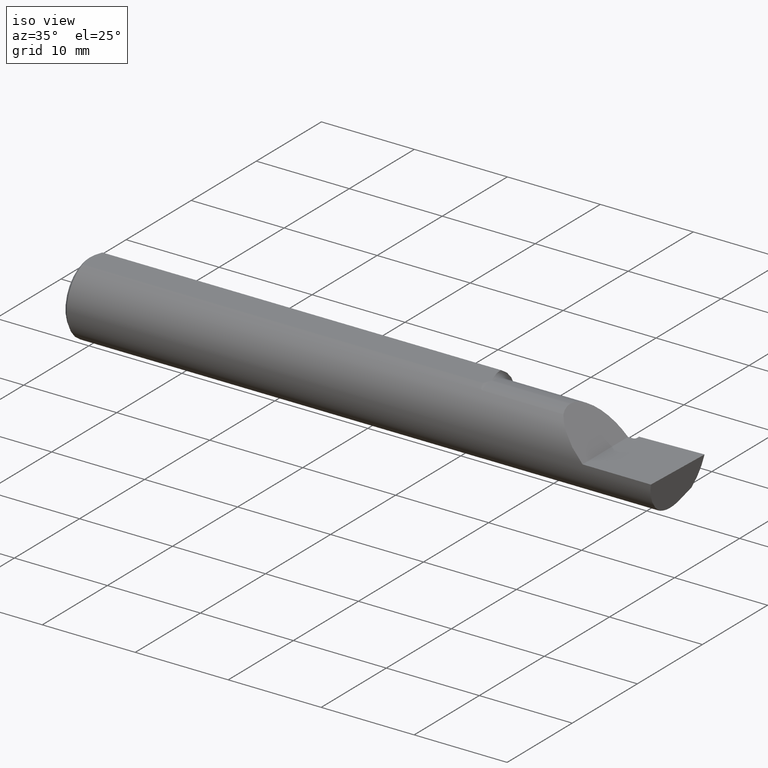
[diagram: clean part render]
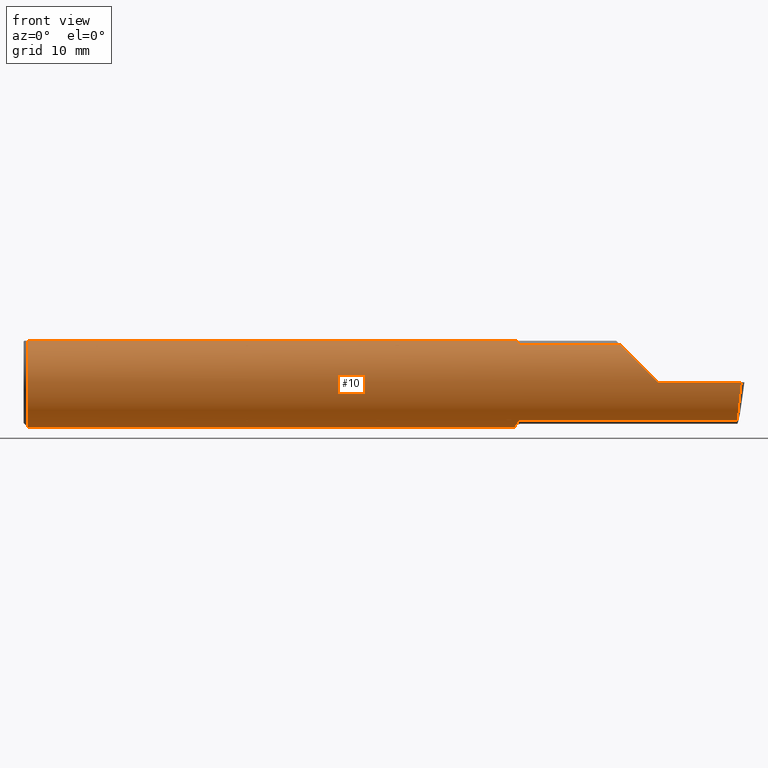
[diagram: tour spotlight — one face highlighted and labeled with its STEP entity id]
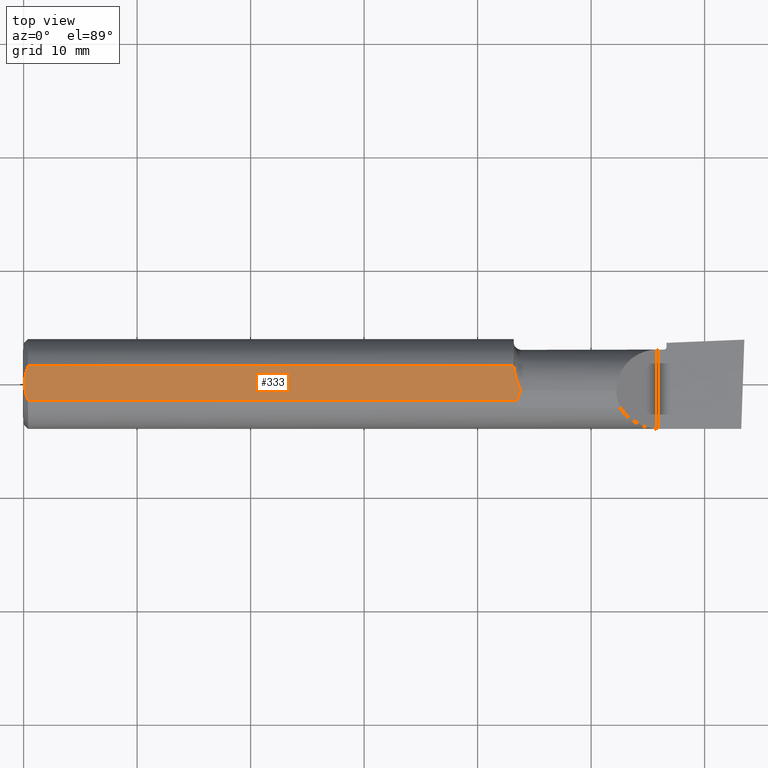
[diagram: tour spotlight — one face highlighted and labeled with its STEP entity id]
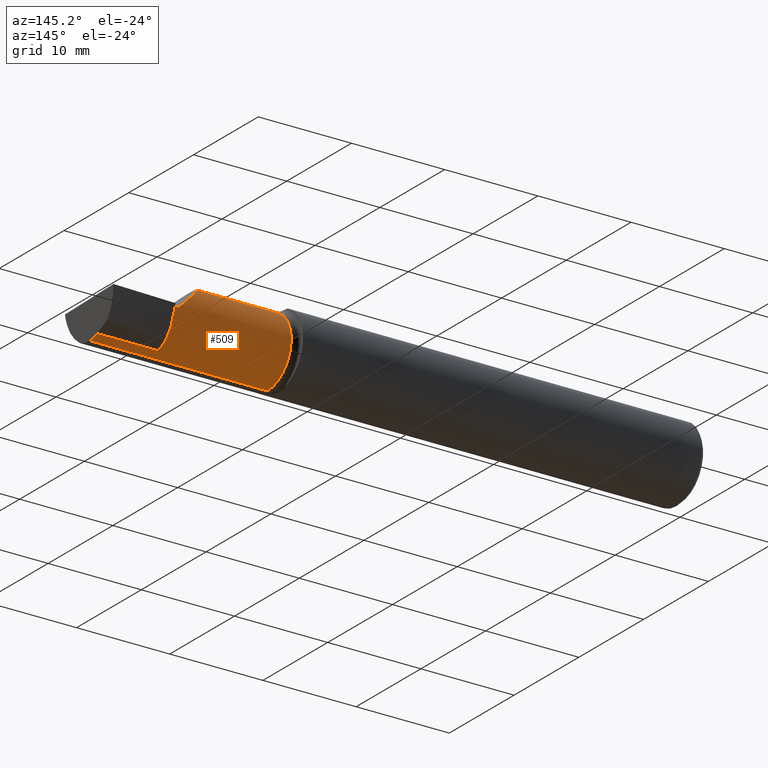
[diagram: tour spotlight — one face highlighted and labeled with its STEP entity id]
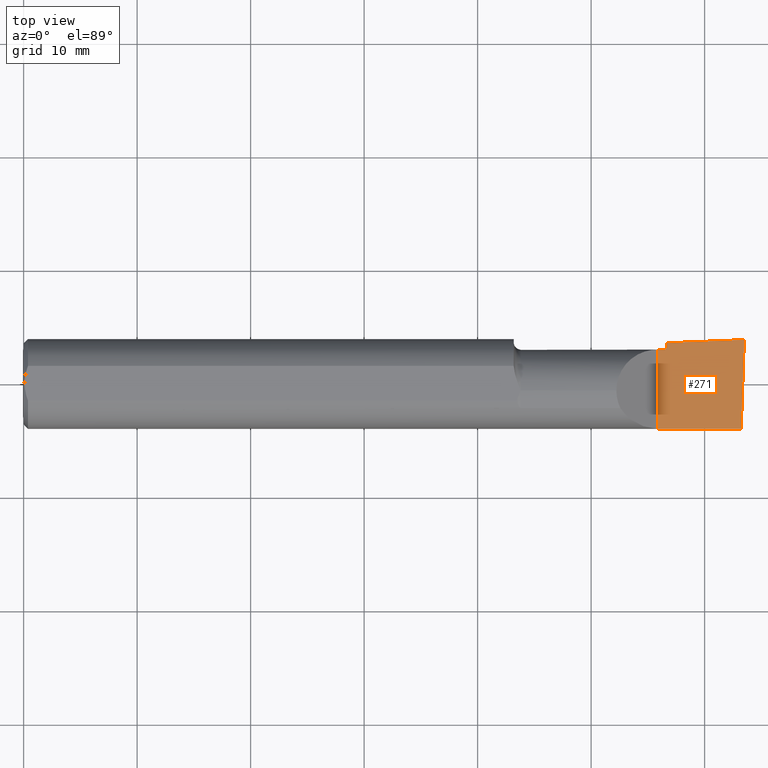
[diagram: tour spotlight — one face highlighted and labeled with its STEP entity id]
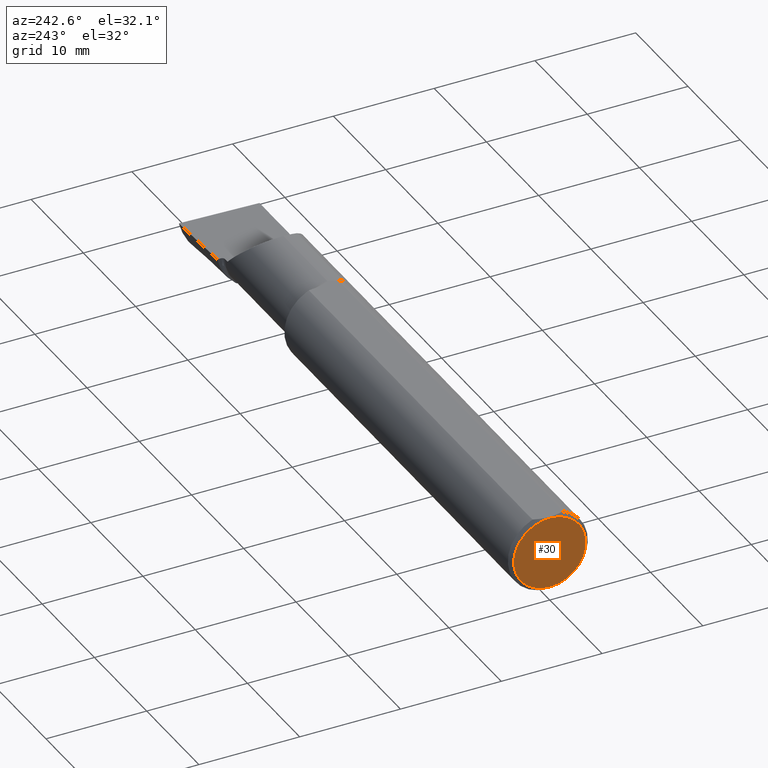
[diagram: tour spotlight — one face highlighted and labeled with its STEP entity id]
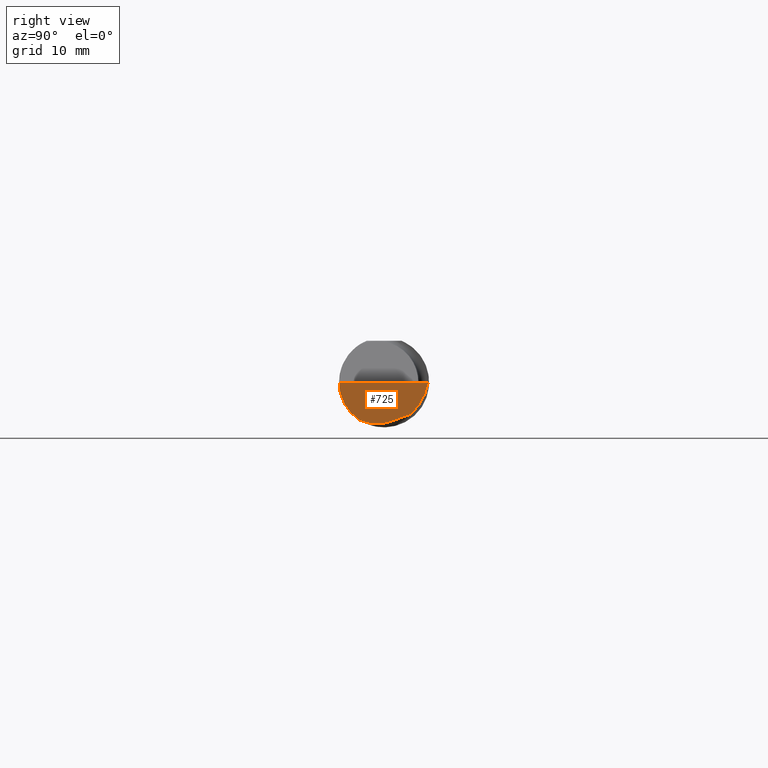
[diagram: tour spotlight — one face highlighted and labeled with its STEP entity id]
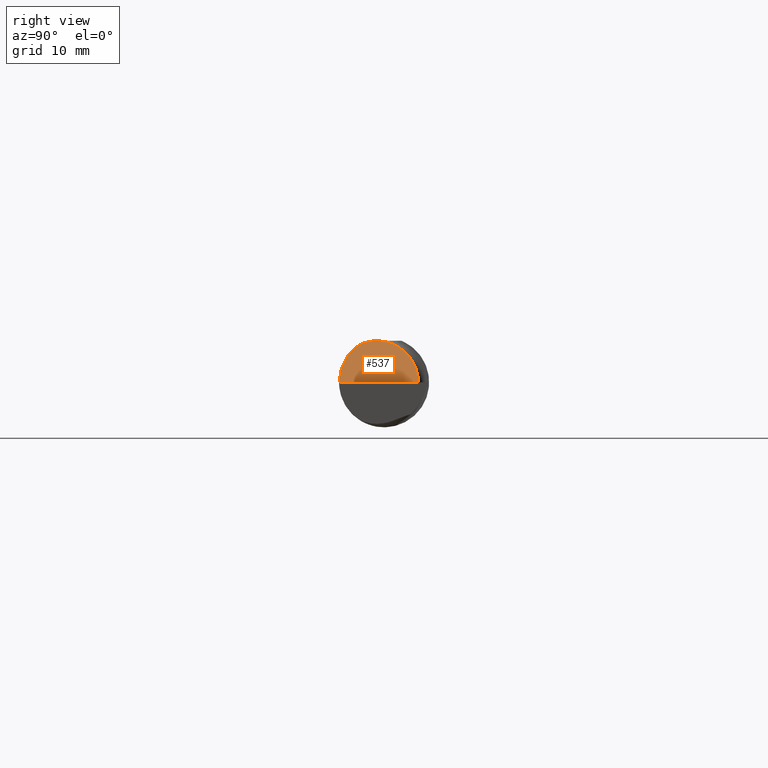
[diagram: tour spotlight — one face highlighted and labeled with its STEP entity id]
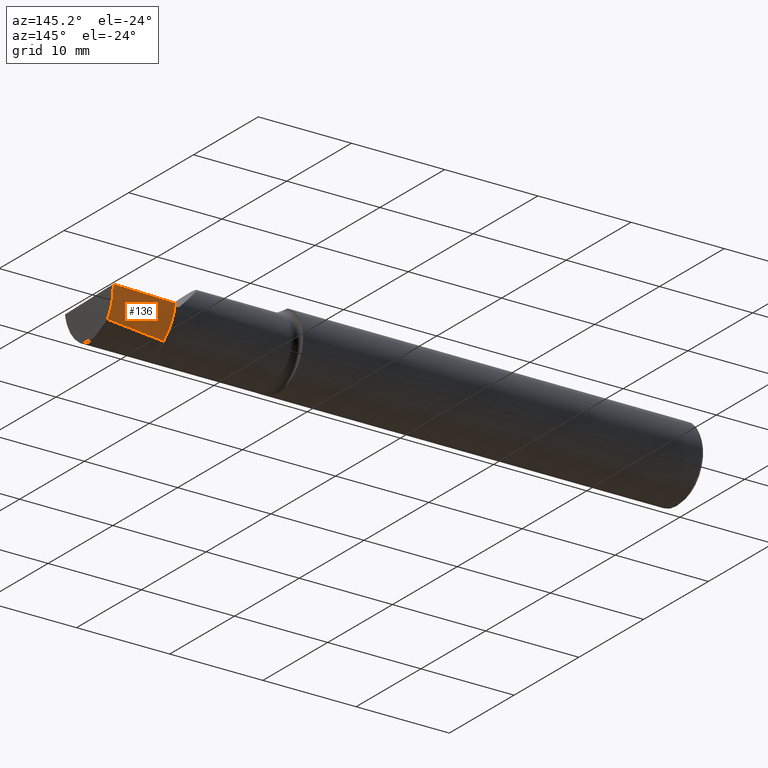
[diagram: tour spotlight — one face highlighted and labeled with its STEP entity id]
A machine part: a face-by-face anatomy tour. The part has 19 B-rep faces; the first image is the clean iso view, then the 8 largest visible faces are spotlighted one at a time (largest first), each with its STEP entity span.

Face 1 — front view, entity #10. In plain terms, the highlighted cylindrical surface (partial cylindrical patch) has radius 3.9649 mm, axis along (-1, -0, -0).
Definition (entity closure, byte-faithful):
#1 = ORIENTED_EDGE ( 'NONE', *, *, #163, .F. ) ;
#2 = CARTESIAN_POINT ( 'NONE',  ( 2.482667168175673122, -0.1560999999999999333, -0.05371247775559884891 ) ) ;
#4 = B_SPLINE_CURVE_WITH_KNOTS ( 'NONE', 3,
 ( #316, #206, #541, #604, #43, #710, #39, #428, #653, #369 ),
 .UNSPECIFIED., .F., .F.,
 ( 4, 2, 2, 2, 4 ),
 ( 0.001819519887002702969, 0.002458246943215918866, 0.003096973999429134764, 0.003735701055642350228, 0.004374428111855565258 ),
 .UNSPECIFIED. ) ;
#9 = CARTESIAN_POINT ( 'NONE',  ( 2.199999999999999289, -0.1560999999999999888, 3.826894855694925850E-18 ) ) ;
#10 = ADVANCED_FACE ( 'NONE', ( #23 ), #574, .T. ) ;
#23 = FACE_OUTER_BOUND ( 'NONE', #547, .T. ) ;
#27 = VECTOR ( 'NONE', #378, 39.37007874015748143 ) ;
#39 = CARTESIAN_POINT ( 'NONE',  ( 1.700397517577731055, 0.04003554869482293249, -0.1511013546051949707 ) ) ;
#43 = CARTESIAN_POINT ( 'NONE',  ( 1.701388441185261113, 0.01585133794323645776, -0.1555099485709025287 ) ) ;
#44 = CARTESIAN_POINT ( 'NONE',  ( 1.724999999999999867, -0.08569999999999906859, 0.1304711462354805618 ) ) ;
#46 = VERTEX_POINT ( 'NONE', #44 ) ;
#75 = VERTEX_POINT ( 'NONE', #490 ) ;
#81 = ORIENTED_EDGE ( 'NONE', *, *, #617, .T. ) ;
#89 = CARTESIAN_POINT ( 'NONE',  ( 1.723482932671287271, -0.08569999999999920737, -0.1304711462354805063 ) ) ;
#100 = ORIENTED_EDGE ( 'NONE', *, *, #466, .T. ) ;
#104 = CARTESIAN_POINT ( 'NONE',  ( 1.699999999999999956, 0.07070000000000060958, 0.1391715488165591041 ) ) ;
#105 = LINE ( 'NONE', #549, #565 ) ;
#109 = AXIS2_PLACEMENT_3D ( 'NONE', #671, #171, #382 ) ;
#110 = CARTESIAN_POINT ( 'NONE',  ( 1.700016018626790748, 0.06364538733738628329, 0.1425899657466626891 ) ) ;
#111 = LINE ( 'NONE', #167, #27 ) ;
#113 = CARTESIAN_POINT ( 'NONE',  ( 1.724999999999999867, -0.08569999999999916573, -0.1304711462354805063 ) ) ;
#121 = CARTESIAN_POINT ( 'NONE',  ( 1.713486186723763183, -0.06993940022577679883, 0.1396536156489262548 ) ) ;
#128 = CARTESIAN_POINT ( 'NONE',  ( 2.146287522244397561, -0.1560999999999999333, 0.05371247775560204774 ) ) ;
#134 = ORIENTED_EDGE ( 'NONE', *, *, #628, .F. ) ;
#146 =( BOUNDED_CURVE ( )  B_SPLINE_CURVE ( 3, ( #169, #381, #2, #677 ),
 .UNSPECIFIED., .F., .T. ) 
 B_SPLINE_CURVE_WITH_KNOTS ( ( 4, 4 ),
 ( 0.3062340898531102917, 1.295854645076560674 ),
 .UNSPECIFIED. ) 
 CURVE ( )  GEOMETRIC_REPRESENTATION_ITEM ( )  RATIONAL_B_SPLINE_CURVE ( ( 1.000000000000000000, 0.9200392120919964611, 0.9200392120919964611, 1.000000000000000000 ) ) 
 REPRESENTATION_ITEM ( '' )  );
#147 = VERTEX_POINT ( 'NONE', #158 ) ;
#149 = CARTESIAN_POINT ( 'NONE',  ( 1.720128093538962011, -0.08306175160949910707, -0.1321708551218367111 ) ) ;
#157 = LINE ( 'NONE', #258, #160 ) ;
#158 = CARTESIAN_POINT ( 'NONE',  ( 1.704862523376302841, -0.02499999999999999792, -0.1540850739039962836 ) ) ;
#160 = VECTOR ( 'NONE', #598, 39.37007874015748143 ) ;
#161 = ORIENTED_EDGE ( 'NONE', *, *, #288, .T. ) ;
#163 = EDGE_CURVE ( 'NONE', #46, #326, #105, .T. ) ;
#167 = CARTESIAN_POINT ( 'NONE',  ( 2.500000000000000000, 0.06001999666777736719, 0.1440999999999999504 ) ) ;
#169 = CARTESIAN_POINT ( 'NONE',  ( 2.475676552398977215, -0.08569999999999904083, -0.1304711462354805618 ) ) ;
#170 = EDGE_CURVE ( 'NONE', #591, #147, #216, .T. ) ;
#171 = DIRECTION ( 'NONE',  ( 1.000000000000000000, -0.000000000000000000, -0.000000000000000000 ) ) ;
#172 = AXIS2_PLACEMENT_3D ( 'NONE', #448, #329, #226 ) ;
#175 = CARTESIAN_POINT ( 'NONE',  ( 1.972499999999999698, -0.08569999999999904083, -0.1304711462354805618 ) ) ;
#178 = CARTESIAN_POINT ( 'NONE',  ( 1.716324726609743445, -0.07684337455390490013, 0.1359013108991525831 ) ) ;
#191 = AXIS2_PLACEMENT_3D ( 'NONE', #275, #500, #606 ) ;
#206 = CARTESIAN_POINT ( 'NONE',  ( 1.703902027940762176, -0.01695323297373860921, -0.1553906460178914595 ) ) ;
#216 = B_SPLINE_CURVE_WITH_KNOTS ( 'NONE', 3,
 ( #589, #89, #706, #149, #231, #330, #224, #284, #457, #557, #616, #567 ),
 .UNSPECIFIED., .F., .F.,
 ( 4, 2, 2, 2, 2, 4 ),
 ( 1.966861314561707490E-07, 0.0001139043861859079042, 0.0002276120862403596364, 0.0004550274863492631008, 0.0009098582865670781610, 0.001819519887002702969 ),
 .UNSPECIFIED. ) ;
#217 = LINE ( 'NONE', #175, #439 ) ;
#220 = ORIENTED_EDGE ( 'NONE', *, *, #562, .F. ) ;
#221 = CARTESIAN_POINT ( 'NONE',  ( 1.699999999999999956, 0.06720526509779148339, 0.1409468955716050020 ) ) ;
#222 = CARTESIAN_POINT ( 'NONE',  ( 1.723558490372087082, -0.08570000000287428255, 0.1304711462335922945 ) ) ;
#224 = CARTESIAN_POINT ( 'NONE',  ( 1.716062054560795858, -0.07627963852229814601, -0.1362221433799976900 ) ) ;
#226 = DIRECTION ( 'NONE',  ( 0.000000000000000000, 0.000000000000000000, -1.000000000000000000 ) ) ;
#227 = CIRCLE ( 'NONE', #172, 0.1560999999999999888 ) ;
#229 = EDGE_CURVE ( 'NONE', #412, #46, #454, .T. ) ;
#231 = CARTESIAN_POINT ( 'NONE',  ( 1.719310887745669092, -0.08198244806375801219, -0.1328448627315472197 ) ) ;
#238 = CARTESIAN_POINT ( 'NONE',  ( 2.475676552398977215, -0.08569999999999904083, -0.1304711462354805618 ) ) ;
#245 = CARTESIAN_POINT ( 'NONE',  ( 2.500000000000000000, 0.000000000000000000, 0.000000000000000000 ) ) ;
#247 = ORIENTED_EDGE ( 'NONE', *, *, #170, .F. ) ;
#257 = ORIENTED_EDGE ( 'NONE', *, *, #379, .F. ) ;
#258 = CARTESIAN_POINT ( 'NONE',  ( 2.500000000000000000, -0.06001999666777736719, 0.1440999999999999504 ) ) ;
#262 = ORIENTED_EDGE ( 'NONE', *, *, #320, .T. ) ;
#275 = CARTESIAN_POINT ( 'NONE',  ( 1.699999999999999956, 0.000000000000000000, 0.000000000000000000 ) ) ;
#277 = B_SPLINE_CURVE_WITH_KNOTS ( 'NONE', 3,
 ( #104, #221, #110, #319 ),
 .UNSPECIFIED., .F., .F.,
 ( 4, 4 ),
 ( 0.002773882331925826752, 0.003069179409190573790 ),
 .UNSPECIFIED. ) ;
#284 = CARTESIAN_POINT ( 'NONE',  ( 1.713126895908767100, -0.06887538526310785225, -0.1401954838979878326 ) ) ;
#287 = CARTESIAN_POINT ( 'NONE',  ( 1.719508261956889328, -0.08224208440130456599, 0.1326837206089797605 ) ) ;
#288 = EDGE_CURVE ( 'NONE', #535, #570, #111, .T. ) ;
#292 = CARTESIAN_POINT ( 'NONE',  ( 1.710843495424060334, -0.06001999666777307202, 0.1440999999999999504 ) ) ;
#316 = CARTESIAN_POINT ( 'NONE',  ( 1.704862523376302841, -0.02499999999999999792, -0.1540850739039962836 ) ) ;
#319 = CARTESIAN_POINT ( 'NONE',  ( 1.700050504025077069, 0.06001999666777738107, 0.1440999999999999504 ) ) ;
#320 = EDGE_CURVE ( 'NONE', #75, #577, #525, .T. ) ;
#326 = VERTEX_POINT ( 'NONE', #328 ) ;
#328 = CARTESIAN_POINT ( 'NONE',  ( 2.069528853764516008, -0.08569999999999164397, 0.1304711462354848361 ) ) ;
#329 = DIRECTION ( 'NONE',  ( 1.000000000000000000, -0.000000000000000000, -0.000000000000000000 ) ) ;
#330 = CARTESIAN_POINT ( 'NONE',  ( 1.717151728812736033, -0.07866717671367075282, -0.1348531152278720224 ) ) ;
#338 = CARTESIAN_POINT ( 'NONE',  ( 1.712083001804619586, -0.06507129184707170777, 0.1419960532975073630 ) ) ;
#343 = CARTESIAN_POINT ( 'NONE',  ( 2.056000000000000050, -0.1560999999999999888, 3.826894855694925850E-18 ) ) ;
#350 = CARTESIAN_POINT ( 'NONE',  ( 1.699999999999999956, 0.07070000000000060958, 0.1391715488165591041 ) ) ;
#358 = AXIS2_PLACEMENT_3D ( 'NONE', #245, #480, #432 ) ;
#363 = DIRECTION ( 'NONE',  ( 1.000000000000000000, 0.000000000000000000, 0.000000000000000000 ) ) ;
#369 = CARTESIAN_POINT ( 'NONE',  ( 1.699999999999999956, 0.07070000000000060958, -0.1391715488165591041 ) ) ;
#371 = EDGE_CURVE ( 'NONE', #603, #326, #394, .T. ) ;
#378 = DIRECTION ( 'NONE',  ( 1.000000000000000000, 0.000000000000000000, 0.000000000000000000 ) ) ;
#379 = EDGE_CURVE ( 'NONE', #603, #614, #698, .T. ) ;
#381 = CARTESIAN_POINT ( 'NONE',  ( 2.477743596163800799, -0.1305938407426046333, -0.1009826174484545064 ) ) ;
#382 = DIRECTION ( 'NONE',  ( 0.000000000000000000, 0.000000000000000000, -1.000000000000000000 ) ) ;
#383 = CIRCLE ( 'NONE', #191, 0.1560999999999999888 ) ;
#391 = VERTEX_POINT ( 'NONE', #238 ) ;
#394 =( BOUNDED_CURVE ( )  B_SPLINE_CURVE ( 3, ( #9, #128, #573, #411 ),
 .UNSPECIFIED., .F., .T. ) 
 B_SPLINE_CURVE_WITH_KNOTS ( ( 4, 4 ),
 ( 4.712388980384689674, 5.702009535608194568 ),
 .UNSPECIFIED. ) 
 CURVE ( )  GEOMETRIC_REPRESENTATION_ITEM ( )  RATIONAL_B_SPLINE_CURVE ( ( 1.000000000000000000, 0.9200392120919878014, 0.9200392120919878014, 1.000000000000000000 ) ) 
 REPRESENTATION_ITEM ( '' )  );
#411 = CARTESIAN_POINT ( 'NONE',  ( 2.069528853764516008, -0.08569999999999164397, 0.1304711462354848361 ) ) ;
#412 = VERTEX_POINT ( 'NONE', #292 ) ;
#423 = VERTEX_POINT ( 'NONE', #350 ) ;
#428 = CARTESIAN_POINT ( 'NONE',  ( 1.700071990262526311, 0.05564801034740615021, -0.1460745134073545004 ) ) ;
#432 = DIRECTION ( 'NONE',  ( 0.000000000000000000, 0.000000000000000000, 1.000000000000000000 ) ) ;
#439 = VECTOR ( 'NONE', #667, 39.37007874015748143 ) ;
#445 = CARTESIAN_POINT ( 'NONE',  ( 2.489266190342419360, -0.1561000000000000165, 3.826894855694925850E-18 ) ) ;
#448 = CARTESIAN_POINT ( 'NONE',  ( 0.01499999999999970281, 0.000000000000000000, 0.000000000000000000 ) ) ;
#449 = CARTESIAN_POINT ( 'NONE',  ( 1.710843495424060334, -0.06001999666777307202, 0.1440999999999999504 ) ) ;
#454 = B_SPLINE_CURVE_WITH_KNOTS ( 'NONE', 3,
 ( #449, #338, #121, #178, #560, #287, #608, #674, #222, #681 ),
 .UNSPECIFIED., .F., .F.,
 ( 4, 2, 2, 2, 4 ),
 ( 5.292347910114024897E-07, 0.0004247077115782277898, 0.0006367969499718321210, 0.0007428415691686396805, 0.0008488861883654471316 ),
 .UNSPECIFIED. ) ;
#457 = CARTESIAN_POINT ( 'NONE',  ( 1.711707069840787021, -0.06372296352516895745, -0.1426158673175149383 ) ) ;
#458 = EDGE_CURVE ( 'NONE', #147, #693, #4, .T. ) ;
#460 = ORIENTED_EDGE ( 'NONE', *, *, #546, .F. ) ;
#464 = ORIENTED_EDGE ( 'NONE', *, *, #458, .F. ) ;
#465 = DIRECTION ( 'NONE',  ( 1.000000000000000000, -0.000000000000000000, -0.000000000000000000 ) ) ;
#466 = EDGE_CURVE ( 'NONE', #412, #75, #157, .T. ) ;
#480 = DIRECTION ( 'NONE',  ( -1.000000000000000000, -0.000000000000000000, -0.000000000000000000 ) ) ;
#482 = CARTESIAN_POINT ( 'NONE',  ( 0.01499999999999970281, 0.06001999666777736719, 0.1440999999999999504 ) ) ;
#490 = CARTESIAN_POINT ( 'NONE',  ( 0.01499999999999972536, -0.06001999666777736026, 0.1440999999999999504 ) ) ;
#500 = DIRECTION ( 'NONE',  ( 1.000000000000000000, 0.000000000000000000, 0.000000000000000000 ) ) ;
#514 = ORIENTED_EDGE ( 'NONE', *, *, #622, .T. ) ;
#517 = ORIENTED_EDGE ( 'NONE', *, *, #229, .F. ) ;
#525 = CIRCLE ( 'NONE', #109, 0.1560999999999999888 ) ;
#535 = VERTEX_POINT ( 'NONE', #482 ) ;
#541 = CARTESIAN_POINT ( 'NONE',  ( 1.703136333117606149, -0.008834603825782223752, -0.1560646118524871839 ) ) ;
#546 = EDGE_CURVE ( 'NONE', #423, #570, #277, .T. ) ;
#547 = EDGE_LOOP ( 'NONE', ( #134, #514, #257, #642, #1, #517, #100, #262, #81, #161, #460, #220, #464, #247 ) ) ;
#549 = CARTESIAN_POINT ( 'NONE',  ( 1.972499999999999698, -0.08569999999999904083, 0.1304711462354805618 ) ) ;
#556 = CARTESIAN_POINT ( 'NONE',  ( 0.01499999999999970281, 0.000000000000000000, -0.1560999999999999888 ) ) ;
#557 = CARTESIAN_POINT ( 'NONE',  ( 1.707963511987595329, -0.04781653154421289936, -0.1490354188631308474 ) ) ;
#559 = CARTESIAN_POINT ( 'NONE',  ( 2.199999999999999289, -0.1560999999999999888, 3.826894855694925850E-18 ) ) ;
#560 = CARTESIAN_POINT ( 'NONE',  ( 1.717376702052391568, -0.07908290169519957558, 0.1346075232099597785 ) ) ;
#562 = EDGE_CURVE ( 'NONE', #693, #423, #383, .T. ) ;
#565 = VECTOR ( 'NONE', #363, 39.37007874015748143 ) ;
#567 = CARTESIAN_POINT ( 'NONE',  ( 1.704862523376302841, -0.02499999999999999792, -0.1540850739039962836 ) ) ;
#570 = VERTEX_POINT ( 'NONE', #724 ) ;
#573 = CARTESIAN_POINT ( 'NONE',  ( 2.099017382551540134, -0.1305938407426018300, 0.1009826174484598355 ) ) ;
#574 = CYLINDRICAL_SURFACE ( 'NONE', #358, 0.1560999999999999888 ) ;
#577 = VERTEX_POINT ( 'NONE', #556 ) ;
#589 = CARTESIAN_POINT ( 'NONE',  ( 1.724999999999999867, -0.08569999999999916573, -0.1304711462354805063 ) ) ;
#591 = VERTEX_POINT ( 'NONE', #113 ) ;
#598 = DIRECTION ( 'NONE',  ( -1.000000000000000000, -0.000000000000000000, -0.000000000000000000 ) ) ;
#603 = VERTEX_POINT ( 'NONE', #559 ) ;
#604 = CARTESIAN_POINT ( 'NONE',  ( 1.701879363605552253, 0.007536363012658965806, -0.1561326888578027094 ) ) ;
#606 = DIRECTION ( 'NONE',  ( 0.000000000000000000, 0.000000000000000000, -1.000000000000000000 ) ) ;
#608 = CARTESIAN_POINT ( 'NONE',  ( 1.720308733175471616, -0.08325729668116099713, 0.1320471792325038363 ) ) ;
#614 = VERTEX_POINT ( 'NONE', #445 ) ;
#616 = CARTESIAN_POINT ( 'NONE',  ( 1.706230440715337471, -0.03646003586389188339, -0.1522257056385417640 ) ) ;
#617 = EDGE_CURVE ( 'NONE', #577, #535, #227, .T. ) ;
#622 = EDGE_CURVE ( 'NONE', #391, #614, #146, .T. ) ;
#628 = EDGE_CURVE ( 'NONE', #391, #591, #217, .T. ) ;
#642 = ORIENTED_EDGE ( 'NONE', *, *, #371, .T. ) ;
#646 = VECTOR ( 'NONE', #465, 39.37007874015748143 ) ;
#653 = CARTESIAN_POINT ( 'NONE',  ( 1.699999999999999956, 0.06336441380915155963, -0.1428980715728490891 ) ) ;
#667 = DIRECTION ( 'NONE',  ( -1.000000000000000000, -0.000000000000000000, -0.000000000000000000 ) ) ;
#671 = CARTESIAN_POINT ( 'NONE',  ( 0.01499999999999970281, 0.000000000000000000, 0.000000000000000000 ) ) ;
#674 = CARTESIAN_POINT ( 'NONE',  ( 1.722282960142827779, -0.08496306084893941180, 0.1309561502377619424 ) ) ;
#677 = CARTESIAN_POINT ( 'NONE',  ( 2.489266190342419360, -0.1561000000000000165, 3.826894855694925850E-18 ) ) ;
#681 = CARTESIAN_POINT ( 'NONE',  ( 1.724999999999999867, -0.08569999999999906859, 0.1304711462354805618 ) ) ;
#682 = CARTESIAN_POINT ( 'NONE',  ( 1.699999999999999956, 0.07070000000000060958, -0.1391715488165591041 ) ) ;
#693 = VERTEX_POINT ( 'NONE', #682 ) ;
#698 = LINE ( 'NONE', #343, #646 ) ;
#706 = CARTESIAN_POINT ( 'NONE',  ( 1.722162220462617466, -0.08489276752862343067, -0.1310023188550752393 ) ) ;
#710 = CARTESIAN_POINT ( 'NONE',  ( 1.700649978979527521, 0.03207608857981709971, -0.1529893249888212570 ) ) ;
#724 = CARTESIAN_POINT ( 'NONE',  ( 1.700050504025077069, 0.06001999666777738107, 0.1440999999999999504 ) ) ;

Face 2 — top view, entity #333. In plain terms, the highlighted planar face has unit normal (-0, 0, -1).
Definition (entity closure, byte-faithful):
#27 = VECTOR ( 'NONE', #378, 39.37007874015748143 ) ;
#35 = CARTESIAN_POINT ( 'NONE',  ( 0.008281010600930404503, -0.04057055625899311929, 0.1440999999999999226 ) ) ;
#50 = B_SPLINE_CURVE_WITH_KNOTS ( 'NONE', 3,
 ( #661, #532, #544, #35, #267, #254 ),
 .UNSPECIFIED., .F., .F.,
 ( 4, 2, 4 ),
 ( 0.004180243930011207955, 0.004951811791491188969, 0.005723379652971170850 ),
 .UNSPECIFIED. ) ;
#52 = EDGE_CURVE ( 'NONE', #535, #63, #699, .T. ) ;
#63 = VERTEX_POINT ( 'NONE', #596 ) ;
#69 = B_SPLINE_CURVE_WITH_KNOTS ( 'NONE', 3,
 ( #366, #91, #435, #94, #702, #649, #431, #311, #357, #197 ),
 .UNSPECIFIED., .F., .F.,
 ( 4, 2, 2, 2, 4 ),
 ( 0.01301670781631843882, 0.01412932456335741840, 0.01468563293687690993, 0.01496378712363665743, 0.01524194131039640666 ),
 .UNSPECIFIED. ) ;
#75 = VERTEX_POINT ( 'NONE', #490 ) ;
#77 = CARTESIAN_POINT ( 'NONE',  ( 1.718148277183320971, -0.03981762987256244612, 0.1440999999999999504 ) ) ;
#78 = ORIENTED_EDGE ( 'NONE', *, *, #466, .F. ) ;
#91 = CARTESIAN_POINT ( 'NONE',  ( 1.700532541532473685, 0.04511886254873670454, 0.1440999999999999781 ) ) ;
#94 = CARTESIAN_POINT ( 'NONE',  ( 1.710816084744943399, 0.009840729273038575572, 0.1440999999999999504 ) ) ;
#102 = CARTESIAN_POINT ( 'NONE',  ( 0.01131807689752593361, 0.05044405151276061539, 0.1440999999999999781 ) ) ;
#111 = LINE ( 'NONE', #167, #27 ) ;
#157 = LINE ( 'NONE', #258, #160 ) ;
#160 = VECTOR ( 'NONE', #598, 39.37007874015748143 ) ;
#167 = CARTESIAN_POINT ( 'NONE',  ( 2.500000000000000000, 0.06001999666777736719, 0.1440999999999999504 ) ) ;
#177 = CARTESIAN_POINT ( 'NONE',  ( 1.721036826405246689, -0.03107590170041928460, 0.1440999999999999504 ) ) ;
#192 = CARTESIAN_POINT ( 'NONE',  ( 1.721844053232376881, -0.02500000000003146580, 0.1440999999999999504 ) ) ;
#197 = CARTESIAN_POINT ( 'NONE',  ( 1.721844053232376881, -0.02500000000003146580, 0.1440999999999999504 ) ) ;
#203 = CARTESIAN_POINT ( 'NONE',  ( 0.002999999999999648781, 0.01034624861404697359, 0.1440999999999999781 ) ) ;
#214 = AXIS2_PLACEMENT_3D ( 'NONE', #571, #399, #524 ) ;
#254 = CARTESIAN_POINT ( 'NONE',  ( 0.01499999999999972536, -0.06001999666777736026, 0.1440999999999999504 ) ) ;
#258 = CARTESIAN_POINT ( 'NONE',  ( 2.500000000000000000, -0.06001999666777736719, 0.1440999999999999504 ) ) ;
#264 = CARTESIAN_POINT ( 'NONE',  ( 0.004122478534597582081, 0.02050740516666000463, 0.1440999999999999504 ) ) ;
#267 = CARTESIAN_POINT ( 'NONE',  ( 0.01133677082750125277, -0.05049267068356103755, 0.1440999999999999781 ) ) ;
#270 = CARTESIAN_POINT ( 'NONE',  ( 0.01499999999999970281, 0.06001999666777736719, 0.1440999999999999504 ) ) ;
#281 = FACE_OUTER_BOUND ( 'NONE', #487, .T. ) ;
#288 = EDGE_CURVE ( 'NONE', #535, #570, #111, .T. ) ;
#292 = CARTESIAN_POINT ( 'NONE',  ( 1.710843495424060334, -0.06001999666777307202, 0.1440999999999999504 ) ) ;
#311 = CARTESIAN_POINT ( 'NONE',  ( 1.720724021719190366, -0.01776615298045637961, 0.1440999999999999504 ) ) ;
#315 = ORIENTED_EDGE ( 'NONE', *, *, #486, .F. ) ;
#333 = ADVANCED_FACE ( 'NONE', ( #281 ), #688, .F. ) ;
#345 = CARTESIAN_POINT ( 'NONE',  ( 1.710843495424060334, -0.06001999666777307202, 0.1440999999999999504 ) ) ;
#357 = CARTESIAN_POINT ( 'NONE',  ( 1.721844053232386873, -0.02136326841098503543, 0.1440999999999999781 ) ) ;
#360 = CARTESIAN_POINT ( 'NONE',  ( 0.008267319495954040393, 0.04051643528673654765, 0.1440999999999999781 ) ) ;
#366 = CARTESIAN_POINT ( 'NONE',  ( 1.700050504025077069, 0.06001999666777738107, 0.1440999999999999504 ) ) ;
#378 = DIRECTION ( 'NONE',  ( 1.000000000000000000, 0.000000000000000000, 0.000000000000000000 ) ) ;
#390 = CARTESIAN_POINT ( 'NONE',  ( 1.719201185154610068, -0.03693468910894934926, 0.1440999999999999504 ) ) ;
#399 = DIRECTION ( 'NONE',  ( -0.000000000000000000, 0.000000000000000000, -1.000000000000000000 ) ) ;
#410 = ORIENTED_EDGE ( 'NONE', *, *, #288, .F. ) ;
#412 = VERTEX_POINT ( 'NONE', #292 ) ;
#426 = CARTESIAN_POINT ( 'NONE',  ( 0.002999999999999654852, 1.764715027525136477E-17, 0.1440999999999999504 ) ) ;
#431 = CARTESIAN_POINT ( 'NONE',  ( 1.718418672230966893, -0.01083899323585573241, 0.1440999999999999504 ) ) ;
#435 = CARTESIAN_POINT ( 'NONE',  ( 1.704082834115631773, 0.03088512097720228639, 0.1440999999999999504 ) ) ;
#456 = CARTESIAN_POINT ( 'NONE',  ( 1.721844053232376881, -0.02500000000003146580, 0.1440999999999999504 ) ) ;
#466 = EDGE_CURVE ( 'NONE', #412, #75, #157, .T. ) ;
#482 = CARTESIAN_POINT ( 'NONE',  ( 0.01499999999999970281, 0.06001999666777736719, 0.1440999999999999504 ) ) ;
#486 = EDGE_CURVE ( 'NONE', #570, #723, #69, .T. ) ;
#487 = EDGE_LOOP ( 'NONE', ( #315, #410, #656, #687, #78, #704 ) ) ;
#490 = CARTESIAN_POINT ( 'NONE',  ( 0.01499999999999972536, -0.06001999666777736026, 0.1440999999999999504 ) ) ;
#524 = DIRECTION ( 'NONE',  ( -1.000000000000000000, 0.000000000000000000, 0.000000000000000000 ) ) ;
#530 = EDGE_CURVE ( 'NONE', #63, #75, #50, .T. ) ;
#532 = CARTESIAN_POINT ( 'NONE',  ( 0.002999999999999647914, -0.01031315224690933403, 0.1440999999999999781 ) ) ;
#535 = VERTEX_POINT ( 'NONE', #482 ) ;
#544 = CARTESIAN_POINT ( 'NONE',  ( 0.004124548268480916768, -0.02052932358343030617, 0.1441000000000000059 ) ) ;
#569 = CARTESIAN_POINT ( 'NONE',  ( 1.712837095251397823, -0.05422015848554269379, 0.1440999999999999781 ) ) ;
#570 = VERTEX_POINT ( 'NONE', #724 ) ;
#571 = CARTESIAN_POINT ( 'NONE',  ( 0.000000000000000000, 0.06250000000000000000, 0.1440999999999999504 ) ) ;
#596 = CARTESIAN_POINT ( 'NONE',  ( 0.002999999999999654852, 1.764715027525136477E-17, 0.1440999999999999504 ) ) ;
#598 = DIRECTION ( 'NONE',  ( -1.000000000000000000, -0.000000000000000000, -0.000000000000000000 ) ) ;
#626 = CARTESIAN_POINT ( 'NONE',  ( 1.714985600317322501, -0.04846509284843824455, 0.1440999999999999504 ) ) ;
#649 = CARTESIAN_POINT ( 'NONE',  ( 1.717139718007816951, -0.007416860360634943729, 0.1440999999999999504 ) ) ;
#656 = ORIENTED_EDGE ( 'NONE', *, *, #52, .T. ) ;
#661 = CARTESIAN_POINT ( 'NONE',  ( 0.002999999999999654852, 1.764715027525136477E-17, 0.1440999999999999504 ) ) ;
#675 = EDGE_CURVE ( 'NONE', #723, #412, #707, .T. ) ;
#679 = CARTESIAN_POINT ( 'NONE',  ( 1.721844053232375327, -0.02804753169359756881, 0.1440999999999999504 ) ) ;
#687 = ORIENTED_EDGE ( 'NONE', *, *, #530, .T. ) ;
#688 = PLANE ( 'NONE',  #214 ) ;
#699 = B_SPLINE_CURVE_WITH_KNOTS ( 'NONE', 3,
 ( #270, #102, #360, #264, #203, #426 ),
 .UNSPECIFIED., .F., .F.,
 ( 4, 2, 4 ),
 ( 0.002632156065823466548, 0.003406199997917337685, 0.004180243930011207955 ),
 .UNSPECIFIED. ) ;
#702 = CARTESIAN_POINT ( 'NONE',  ( 1.713353959584565933, 0.002866311517174219541, 0.1440999999999999504 ) ) ;
#704 = ORIENTED_EDGE ( 'NONE', *, *, #675, .F. ) ;
#707 = B_SPLINE_CURVE_WITH_KNOTS ( 'NONE', 3,
 ( #456, #679, #177, #390, #77, #626, #569, #345 ),
 .UNSPECIFIED., .F., .F.,
 ( 4, 2, 2, 4 ),
 ( 0.0006785821176393345283, 0.0009116715494801472209, 0.001144760981320959914, 0.001610939845002584648 ),
 .UNSPECIFIED. ) ;
#723 = VERTEX_POINT ( 'NONE', #192 ) ;
#724 = CARTESIAN_POINT ( 'NONE',  ( 1.700050504025077069, 0.06001999666777738107, 0.1440999999999999504 ) ) ;

Face 3 — auxiliary view, entity #509. In plain terms, the highlighted cylindrical surface (partial cylindrical patch) has radius 3.6551 mm, axis along (-1, -0, -0).
Definition (entity closure, byte-faithful):
#34 = ORIENTED_EDGE ( 'NONE', *, *, #471, .F. ) ;
#49 = DIRECTION ( 'NONE',  ( 0.000000000000000000, 0.000000000000000000, 1.000000000000000000 ) ) ;
#57 = ORIENTED_EDGE ( 'NONE', *, *, #282, .T. ) ;
#58 = CARTESIAN_POINT ( 'NONE',  ( 0.000000000000000000, 0.1189000000000001306, 3.826894855694925850E-18 ) ) ;
#59 = CARTESIAN_POINT ( 'NONE',  ( 2.199999999999999289, 0.1189000000000001306, 3.826894855694925850E-18 ) ) ;
#65 = CARTESIAN_POINT ( 'NONE',  ( 2.199999999999999289, 0.1189000000000001306, 3.826894855694925850E-18 ) ) ;
#73 = VECTOR ( 'NONE', #279, 39.37007874015748143 ) ;
#88 = DIRECTION ( 'NONE',  ( 0.000000000000000000, 0.000000000000000000, 1.000000000000000000 ) ) ;
#93 = VERTEX_POINT ( 'NONE', #659 ) ;
#106 = EDGE_CURVE ( 'NONE', #274, #473, #429, .T. ) ;
#125 =( BOUNDED_CURVE ( )  B_SPLINE_CURVE ( 3, ( #173, #228, #392, #59 ),
 .UNSPECIFIED., .F., .F. ) 
 B_SPLINE_CURVE_WITH_KNOTS ( ( 4, 4 ),
 ( 0.000000000000000000, 1.570796326794898112 ),
 .UNSPECIFIED. ) 
 CURVE ( )  GEOMETRIC_REPRESENTATION_ITEM ( )  RATIONAL_B_SPLINE_CURVE ( ( 1.000000000000000000, 0.8047378541243646044, 0.8047378541243646044, 1.000000000000000000 ) ) 
 REPRESENTATION_ITEM ( '' )  );
#142 = ORIENTED_EDGE ( 'NONE', *, *, #106, .F. ) ;
#143 = CARTESIAN_POINT ( 'NONE',  ( 0.000000000000000000, -0.02500000000000000486, 0.000000000000000000 ) ) ;
#148 = DIRECTION ( 'NONE',  ( -1.000000000000000000, -0.000000000000000000, -0.000000000000000000 ) ) ;
#152 = CARTESIAN_POINT ( 'NONE',  ( 2.476130359589496788, -0.02499999999999999098, -0.1439000000000001389 ) ) ;
#156 = VERTEX_POINT ( 'NONE', #605 ) ;
#166 = LINE ( 'NONE', #387, #181 ) ;
#168 = EDGE_LOOP ( 'NONE', ( #34, #57, #427, #499, #640, #434, #669, #142 ) ) ;
#173 = CARTESIAN_POINT ( 'NONE',  ( 2.056100000000000705, -0.02500000000000000486, 0.1439000000000001389 ) ) ;
#176 = LINE ( 'NONE', #508, #393 ) ;
#181 = VECTOR ( 'NONE', #619, 39.37007874015748143 ) ;
#209 = CARTESIAN_POINT ( 'NONE',  ( 2.478902233428061930, 0.02421669862456291358, -0.1352217681310924902 ) ) ;
#228 = CARTESIAN_POINT ( 'NONE',  ( 2.056100000000000705, 0.05929466837451181221, 0.1439000000000001944 ) ) ;
#239 = VERTEX_POINT ( 'NONE', #65 ) ;
#252 = DIRECTION ( 'NONE',  ( -1.000000000000000000, -0.000000000000000000, -0.000000000000000000 ) ) ;
#261 = AXIS2_PLACEMENT_3D ( 'NONE', #143, #148, #88 ) ;
#265 = EDGE_CURVE ( 'NONE', #444, #239, #125, .T. ) ;
#274 = VERTEX_POINT ( 'NONE', #668 ) ;
#279 = DIRECTION ( 'NONE',  ( 1.000000000000000000, 0.000000000000000000, 0.000000000000000000 ) ) ;
#282 = EDGE_CURVE ( 'NONE', #543, #93, #176, .T. ) ;
#283 = CARTESIAN_POINT ( 'NONE',  ( 1.724999999999999867, -0.02500000000000000486, 0.000000000000000000 ) ) ;
#294 = CIRCLE ( 'NONE', #484, 0.1439000000000001389 ) ;
#304 = CARTESIAN_POINT ( 'NONE',  ( 2.219999999999999751, 0.1189000000000001583, 3.826894855694926621E-18 ) ) ;
#307 = CARTESIAN_POINT ( 'NONE',  ( 2.219999999999999751, 0.02421669862456293787, -0.1352217681310926567 ) ) ;
#370 = DIRECTION ( 'NONE',  ( -1.000000000000000000, 0.000000000000000000, 0.000000000000000000 ) ) ;
#377 = CARTESIAN_POINT ( 'NONE',  ( 2.476130359589496788, -0.02499999999999999098, -0.1439000000000001389 ) ) ;
#384 = DIRECTION ( 'NONE',  ( 0.000000000000000000, 0.000000000000000000, 1.000000000000000000 ) ) ;
#387 = CARTESIAN_POINT ( 'NONE',  ( 0.000000000000000000, -0.02500000000000000486, 0.1439000000000001389 ) ) ;
#392 = CARTESIAN_POINT ( 'NONE',  ( 2.115705331625488572, 0.1189000000000002555, 0.08429466837451161931 ) ) ;
#393 = VECTOR ( 'NONE', #620, 39.37007874015748143 ) ;
#419 = FACE_OUTER_BOUND ( 'NONE', #168, .T. ) ;
#424 = CARTESIAN_POINT ( 'NONE',  ( 2.477647009804057276, 0.008402520951239047728, -0.1409776580835795934 ) ) ;
#427 = ORIENTED_EDGE ( 'NONE', *, *, #554, .F. ) ;
#429 = LINE ( 'NONE', #711, #633 ) ;
#434 = ORIENTED_EDGE ( 'NONE', *, *, #601, .T. ) ;
#444 = VERTEX_POINT ( 'NONE', #595 ) ;
#471 = EDGE_CURVE ( 'NONE', #543, #274, #502, .T. ) ;
#472 = AXIS2_PLACEMENT_3D ( 'NONE', #529, #252, #384 ) ;
#473 = VERTEX_POINT ( 'NONE', #307 ) ;
#476 = CARTESIAN_POINT ( 'NONE',  ( 2.476713598110543035, -0.008170903630063742693, -0.1439000000000001389 ) ) ;
#484 = AXIS2_PLACEMENT_3D ( 'NONE', #283, #503, #49 ) ;
#499 = ORIENTED_EDGE ( 'NONE', *, *, #636, .F. ) ;
#502 =( BOUNDED_CURVE ( )  B_SPLINE_CURVE ( 3, ( #152, #476, #424, #209 ),
 .UNSPECIFIED., .F., .T. ) 
 B_SPLINE_CURVE_WITH_KNOTS ( ( 4, 4 ),
 ( 0.2749416817183363837, 0.6240075321171965061 ),
 .UNSPECIFIED. ) 
 CURVE ( )  GEOMETRIC_REPRESENTATION_ITEM ( )  RATIONAL_B_SPLINE_CURVE ( ( 1.000000000000000000, 0.9898718353414723836, 0.9898718353414723836, 1.000000000000000000 ) ) 
 REPRESENTATION_ITEM ( '' )  );
#503 = DIRECTION ( 'NONE',  ( -1.000000000000000000, -0.000000000000000000, -0.000000000000000000 ) ) ;
#508 = CARTESIAN_POINT ( 'NONE',  ( 0.000000000000000000, -0.02499999999999999098, -0.1439000000000001389 ) ) ;
#509 = ADVANCED_FACE ( 'NONE', ( #419 ), #643, .T. ) ;
#523 = VERTEX_POINT ( 'NONE', #304 ) ;
#529 = CARTESIAN_POINT ( 'NONE',  ( 2.219999999999999751, -0.02500000000000000486, 0.000000000000000000 ) ) ;
#539 = EDGE_CURVE ( 'NONE', #523, #473, #708, .T. ) ;
#543 = VERTEX_POINT ( 'NONE', #377 ) ;
#548 = LINE ( 'NONE', #58, #73 ) ;
#554 = EDGE_CURVE ( 'NONE', #156, #93, #294, .T. ) ;
#595 = CARTESIAN_POINT ( 'NONE',  ( 2.056100000000000705, -0.02500000000000000486, 0.1439000000000001389 ) ) ;
#601 = EDGE_CURVE ( 'NONE', #239, #523, #548, .T. ) ;
#605 = CARTESIAN_POINT ( 'NONE',  ( 1.724999999999999867, -0.02500000000000000486, 0.1439000000000001389 ) ) ;
#619 = DIRECTION ( 'NONE',  ( -1.000000000000000000, -0.000000000000000000, -0.000000000000000000 ) ) ;
#620 = DIRECTION ( 'NONE',  ( -1.000000000000000000, -0.000000000000000000, -0.000000000000000000 ) ) ;
#633 = VECTOR ( 'NONE', #370, 39.37007874015748143 ) ;
#636 = EDGE_CURVE ( 'NONE', #444, #156, #166, .T. ) ;
#640 = ORIENTED_EDGE ( 'NONE', *, *, #265, .T. ) ;
#643 = CYLINDRICAL_SURFACE ( 'NONE', #261, 0.1439000000000001389 ) ;
#659 = CARTESIAN_POINT ( 'NONE',  ( 1.724999999999999867, -0.02499999999999999098, -0.1439000000000001389 ) ) ;
#668 = CARTESIAN_POINT ( 'NONE',  ( 2.478902233428061930, 0.02421669862456291358, -0.1352217681310924902 ) ) ;
#669 = ORIENTED_EDGE ( 'NONE', *, *, #539, .T. ) ;
#708 = CIRCLE ( 'NONE', #472, 0.1439000000000001667 ) ;
#711 = CARTESIAN_POINT ( 'NONE',  ( 2.500000000000000000, 0.02421669862456291358, -0.1352217681310924902 ) ) ;

Face 4 — top view, entity #271. In plain terms, the highlighted planar face has unit normal (-0, 0, -1).
Definition (entity closure, byte-faithful):
#13 = CARTESIAN_POINT ( 'NONE',  ( 2.500000000000000000, 0.1536194554637218546, 2.048885995248197414E-16 ) ) ;
#21 = EDGE_LOOP ( 'NONE', ( #266, #186, #713, #386, #208, #365, #492 ) ) ;
#33 = LINE ( 'NONE', #714, #215 ) ;
#47 = DIRECTION ( 'NONE',  ( 0.000000000000000000, -1.000000000000000000, 0.000000000000000000 ) ) ;
#56 = DIRECTION ( 'NONE',  ( 0.000000000000000000, 0.000000000000000000, 1.000000000000000000 ) ) ;
#58 = CARTESIAN_POINT ( 'NONE',  ( 0.000000000000000000, 0.1189000000000001306, 3.826894855694925850E-18 ) ) ;
#65 = CARTESIAN_POINT ( 'NONE',  ( 2.199999999999999289, 0.1189000000000001306, 3.826894855694925850E-18 ) ) ;
#73 = VECTOR ( 'NONE', #279, 39.37007874015748143 ) ;
#95 = CARTESIAN_POINT ( 'NONE',  ( 2.500000000000000000, 0.1536194554637218546, 2.048885995248197414E-16 ) ) ;
#99 = VECTOR ( 'NONE', #670, 39.37007874015748143 ) ;
#114 = LINE ( 'NONE', #722, #575 ) ;
#117 = CARTESIAN_POINT ( 'NONE',  ( 2.229999999999999538, 0.1560999999999999888, 3.826894855694925850E-18 ) ) ;
#119 = AXIS2_PLACEMENT_3D ( 'NONE', #553, #56, #726 ) ;
#138 = VERTEX_POINT ( 'NONE', #95 ) ;
#183 = CARTESIAN_POINT ( 'NONE',  ( 2.324292103802905629, 0.1464318502245317566, 3.826894855694925850E-18 ) ) ;
#186 = ORIENTED_EDGE ( 'NONE', *, *, #219, .T. ) ;
#187 = CARTESIAN_POINT ( 'NONE',  ( 2.229999999999999538, 0.1425688816766004785, 0.000000000000000000 ) ) ;
#208 = ORIENTED_EDGE ( 'NONE', *, *, #301, .F. ) ;
#215 = VECTOR ( 'NONE', #47, 39.37007874015748143 ) ;
#219 = EDGE_CURVE ( 'NONE', #614, #138, #114, .T. ) ;
#239 = VERTEX_POINT ( 'NONE', #65 ) ;
#248 = AXIS2_PLACEMENT_3D ( 'NONE', #446, #332, #621 ) ;
#266 = ORIENTED_EDGE ( 'NONE', *, *, #379, .T. ) ;
#271 = ADVANCED_FACE ( 'NONE', ( #728 ), #389, .F. ) ;
#276 = DIRECTION ( 'NONE',  ( 0.03463576215158579996, 0.9994000019912840926, 0.000000000000000000 ) ) ;
#279 = DIRECTION ( 'NONE',  ( 1.000000000000000000, 0.000000000000000000, 0.000000000000000000 ) ) ;
#298 = CARTESIAN_POINT ( 'NONE',  ( 2.234292250889879039, 0.1427447335443261800, 3.826894855694925850E-18 ) ) ;
#301 = EDGE_CURVE ( 'NONE', #523, #531, #436, .T. ) ;
#304 = CARTESIAN_POINT ( 'NONE',  ( 2.219999999999999751, 0.1189000000000001583, 3.826894855694926621E-18 ) ) ;
#332 = DIRECTION ( 'NONE',  ( -0.000000000000000000, 0.000000000000000000, -1.000000000000000000 ) ) ;
#343 = CARTESIAN_POINT ( 'NONE',  ( 2.056000000000000050, -0.1560999999999999888, 3.826894855694925850E-18 ) ) ;
#365 = ORIENTED_EDGE ( 'NONE', *, *, #601, .F. ) ;
#379 = EDGE_CURVE ( 'NONE', #603, #614, #698, .T. ) ;
#386 = ORIENTED_EDGE ( 'NONE', *, *, #590, .F. ) ;
#389 = PLANE ( 'NONE',  #248 ) ;
#414 = VERTEX_POINT ( 'NONE', #187 ) ;
#436 = CIRCLE ( 'NONE', #119, 0.009999999999999892655 ) ;
#442 = EDGE_CURVE ( 'NONE', #414, #138, #526, .T. ) ;
#445 = CARTESIAN_POINT ( 'NONE',  ( 2.489266190342419360, -0.1561000000000000165, 3.826894855694925850E-18 ) ) ;
#446 = CARTESIAN_POINT ( 'NONE',  ( 2.056000000000000050, 0.1560999999999999888, 3.826894855694925850E-18 ) ) ;
#452 = LINE ( 'NONE', #117, #99 ) ;
#461 = CARTESIAN_POINT ( 'NONE',  ( 2.232146125398431824, 0.1426568087456045186, 3.826894855694925850E-18 ) ) ;
#465 = DIRECTION ( 'NONE',  ( 1.000000000000000000, -0.000000000000000000, -0.000000000000000000 ) ) ;
#492 = ORIENTED_EDGE ( 'NONE', *, *, #513, .T. ) ;
#493 = CARTESIAN_POINT ( 'NONE',  ( 2.229999999999999538, 0.1289000000000001256, 0.000000000000000000 ) ) ;
#513 = EDGE_CURVE ( 'NONE', #239, #603, #33, .T. ) ;
#515 = CARTESIAN_POINT ( 'NONE',  ( 2.412145986017138366, 0.1500272651619396491, 3.826894855694925850E-18 ) ) ;
#522 = CARTESIAN_POINT ( 'NONE',  ( 2.236438376473965040, 0.1428326560817834989, 3.826894855694925850E-18 ) ) ;
#523 = VERTEX_POINT ( 'NONE', #304 ) ;
#526 = B_SPLINE_CURVE_WITH_KNOTS ( 'NONE', 3,
 ( #581, #461, #298, #522, #183, #515, #13 ),
 .UNSPECIFIED., .F., .F.,
 ( 4, 3, 4 ),
 ( 0.009746653936076972100, 0.009910325884368138827, 0.01661039546317633411 ),
 .UNSPECIFIED. ) ;
#531 = VERTEX_POINT ( 'NONE', #493 ) ;
#548 = LINE ( 'NONE', #58, #73 ) ;
#553 = CARTESIAN_POINT ( 'NONE',  ( 2.219999999999999751, 0.1289000000000001256, 0.000000000000000000 ) ) ;
#559 = CARTESIAN_POINT ( 'NONE',  ( 2.199999999999999289, -0.1560999999999999888, 3.826894855694925850E-18 ) ) ;
#575 = VECTOR ( 'NONE', #276, 39.37007874015748143 ) ;
#581 = CARTESIAN_POINT ( 'NONE',  ( 2.229999999999999538, 0.1425688816766004785, 0.000000000000000000 ) ) ;
#590 = EDGE_CURVE ( 'NONE', #531, #414, #452, .T. ) ;
#601 = EDGE_CURVE ( 'NONE', #239, #523, #548, .T. ) ;
#603 = VERTEX_POINT ( 'NONE', #559 ) ;
#614 = VERTEX_POINT ( 'NONE', #445 ) ;
#621 = DIRECTION ( 'NONE',  ( -1.000000000000000000, 0.000000000000000000, 0.000000000000000000 ) ) ;
#646 = VECTOR ( 'NONE', #465, 39.37007874015748143 ) ;
#670 = DIRECTION ( 'NONE',  ( 0.000000000000000000, 1.000000000000000000, 0.000000000000000000 ) ) ;
#698 = LINE ( 'NONE', #343, #646 ) ;
#713 = ORIENTED_EDGE ( 'NONE', *, *, #442, .F. ) ;
#714 = CARTESIAN_POINT ( 'NONE',  ( 2.199999999999999289, -0.1560999999999999888, 3.826894855694925850E-18 ) ) ;
#722 = CARTESIAN_POINT ( 'NONE',  ( 2.499553225608604823, 0.1407279727905360600, 3.826894855694925850E-18 ) ) ;
#726 = DIRECTION ( 'NONE',  ( -1.000000000000000000, 0.000000000000000000, 0.000000000000000000 ) ) ;
#728 = FACE_OUTER_BOUND ( 'NONE', #21, .T. ) ;

Face 5 — auxiliary view, entity #30. In plain terms, the highlighted planar face has unit normal (1, 0, 0).
Definition (entity closure, byte-faithful):
#15 = CIRCLE ( 'NONE', #122, 0.1411000000000003085 ) ;
#30 = ADVANCED_FACE ( 'NONE', ( #437 ), #312, .F. ) ;
#54 = DIRECTION ( 'NONE',  ( 0.000000000000000000, 0.000000000000000000, -1.000000000000000000 ) ) ;
#64 = DIRECTION ( 'NONE',  ( -1.000000000000000000, -0.000000000000000000, -0.000000000000000000 ) ) ;
#116 = VERTEX_POINT ( 'NONE', #321 ) ;
#122 = AXIS2_PLACEMENT_3D ( 'NONE', #691, #353, #639 ) ;
#133 = AXIS2_PLACEMENT_3D ( 'NONE', #563, #64, #54 ) ;
#243 = EDGE_LOOP ( 'NONE', ( #618, #475 ) ) ;
#312 = PLANE ( 'NONE',  #599 ) ;
#321 = CARTESIAN_POINT ( 'NONE',  ( 0.000000000000000000, 1.819825143532968629E-17, 0.1411000000000003085 ) ) ;
#353 = DIRECTION ( 'NONE',  ( -1.000000000000000000, -0.000000000000000000, -0.000000000000000000 ) ) ;
#368 = VERTEX_POINT ( 'NONE', #402 ) ;
#374 = DIRECTION ( 'NONE',  ( 1.000000000000000000, 0.000000000000000000, 0.000000000000000000 ) ) ;
#402 = CARTESIAN_POINT ( 'NONE',  ( 0.000000000000000000, 0.000000000000000000, -0.1411000000000003085 ) ) ;
#406 = EDGE_CURVE ( 'NONE', #368, #116, #15, .T. ) ;
#437 = FACE_OUTER_BOUND ( 'NONE', #243, .T. ) ;
#475 = ORIENTED_EDGE ( 'NONE', *, *, #645, .T. ) ;
#538 = CARTESIAN_POINT ( 'NONE',  ( 0.000000000000000000, 0.000000000000000000, 0.000000000000000000 ) ) ;
#563 = CARTESIAN_POINT ( 'NONE',  ( 0.000000000000000000, 0.000000000000000000, 0.000000000000000000 ) ) ;
#566 = CIRCLE ( 'NONE', #133, 0.1411000000000003085 ) ;
#593 = DIRECTION ( 'NONE',  ( 0.000000000000000000, 0.000000000000000000, -1.000000000000000000 ) ) ;
#599 = AXIS2_PLACEMENT_3D ( 'NONE', #538, #374, #593 ) ;
#618 = ORIENTED_EDGE ( 'NONE', *, *, #406, .T. ) ;
#639 = DIRECTION ( 'NONE',  ( 0.000000000000000000, 0.000000000000000000, -1.000000000000000000 ) ) ;
#645 = EDGE_CURVE ( 'NONE', #116, #368, #566, .T. ) ;
#691 = CARTESIAN_POINT ( 'NONE',  ( 0.000000000000000000, 0.000000000000000000, 0.000000000000000000 ) ) ;

Face 6 — right view, entity #725. In plain terms, the highlighted planar face has unit normal (-0.992, 0.0344, 0.1219).
Definition (entity closure, byte-faithful):
#2 = CARTESIAN_POINT ( 'NONE',  ( 2.482667168175673122, -0.1560999999999999333, -0.05371247775559884891 ) ) ;
#60 = CARTESIAN_POINT ( 'NONE',  ( 2.475400702430881950, -0.04605394310600609969, -0.1439000000000001389 ) ) ;
#66 = AXIS2_PLACEMENT_3D ( 'NONE', #580, #686, #339 ) ;
#95 = CARTESIAN_POINT ( 'NONE',  ( 2.500000000000000000, 0.1536194554637218546, 2.048885995248197414E-16 ) ) ;
#97 =( BOUNDED_CURVE ( )  B_SPLINE_CURVE ( 3, ( #331, #673, #327, #615 ),
 .UNSPECIFIED., .F., .T. ) 
 B_SPLINE_CURVE_WITH_KNOTS ( ( 4, 4 ),
 ( 4.206370596475371038, 4.793754225472294905 ),
 .UNSPECIFIED. ) 
 CURVE ( )  GEOMETRIC_REPRESENTATION_ITEM ( )  RATIONAL_B_SPLINE_CURVE ( ( 1.000000000000000000, 0.9714544434386382932, 0.9714544434386382932, 1.000000000000000000 ) ) 
 REPRESENTATION_ITEM ( '' )  );
#114 = LINE ( 'NONE', #722, #575 ) ;
#127 = PLANE ( 'NONE',  #66 ) ;
#138 = VERTEX_POINT ( 'NONE', #95 ) ;
#146 =( BOUNDED_CURVE ( )  B_SPLINE_CURVE ( 3, ( #169, #381, #2, #677 ),
 .UNSPECIFIED., .F., .T. ) 
 B_SPLINE_CURVE_WITH_KNOTS ( ( 4, 4 ),
 ( 0.3062340898531102917, 1.295854645076560674 ),
 .UNSPECIFIED. ) 
 CURVE ( )  GEOMETRIC_REPRESENTATION_ITEM ( )  RATIONAL_B_SPLINE_CURVE ( ( 1.000000000000000000, 0.9200392120919964611, 0.9200392120919964611, 1.000000000000000000 ) ) 
 REPRESENTATION_ITEM ( '' )  );
#152 = CARTESIAN_POINT ( 'NONE',  ( 2.476130359589496788, -0.02499999999999999098, -0.1439000000000001389 ) ) ;
#165 = ORIENTED_EDGE ( 'NONE', *, *, #665, .T. ) ;
#169 = CARTESIAN_POINT ( 'NONE',  ( 2.475676552398977215, -0.08569999999999904083, -0.1304711462354805618 ) ) ;
#209 = CARTESIAN_POINT ( 'NONE',  ( 2.478902233428061930, 0.02421669862456291358, -0.1352217681310924902 ) ) ;
#219 = EDGE_CURVE ( 'NONE', #614, #138, #114, .T. ) ;
#230 = DIRECTION ( 'NONE',  ( 0.07437990725530781166, 0.9370896517296887218, 0.3410727400684822053 ) ) ;
#238 = CARTESIAN_POINT ( 'NONE',  ( 2.475676552398977215, -0.08569999999999904083, -0.1304711462354805618 ) ) ;
#250 =( BOUNDED_CURVE ( )  B_SPLINE_CURVE ( 3, ( #269, #496, #60, #323 ),
 .UNSPECIFIED., .F., .T. ) 
 B_SPLINE_CURVE_WITH_KNOTS ( ( 4, 4 ),
 ( 6.122674497807371274, 6.558126988897922338 ),
 .UNSPECIFIED. ) 
 CURVE ( )  GEOMETRIC_REPRESENTATION_ITEM ( )  RATIONAL_B_SPLINE_CURVE ( ( 1.000000000000000000, 0.9842607512044747597, 0.9842607512044747597, 1.000000000000000000 ) ) 
 REPRESENTATION_ITEM ( '' )  );
#251 = ORIENTED_EDGE ( 'NONE', *, *, #607, .T. ) ;
#253 = ORIENTED_EDGE ( 'NONE', *, *, #471, .T. ) ;
#269 = CARTESIAN_POINT ( 'NONE',  ( 2.475676552398977215, -0.08569999999999904083, -0.1304711462354805618 ) ) ;
#274 = VERTEX_POINT ( 'NONE', #668 ) ;
#276 = DIRECTION ( 'NONE',  ( 0.03463576215158579996, 0.9994000019912840926, 0.000000000000000000 ) ) ;
#323 = CARTESIAN_POINT ( 'NONE',  ( 2.476130359589496788, -0.02499999999999999098, -0.1439000000000001389 ) ) ;
#327 = CARTESIAN_POINT ( 'NONE',  ( 2.494605827839288192, 0.1454635380981003923, -0.04160498188424494731 ) ) ;
#331 = CARTESIAN_POINT ( 'NONE',  ( 2.484581445595343219, 0.09576735185317623855, -0.1091794601135747944 ) ) ;
#339 = DIRECTION ( 'NONE',  ( 0.1219414168599299575, 0.000000000000000000, 0.9925372994775525370 ) ) ;
#361 = ORIENTED_EDGE ( 'NONE', *, *, #568, .T. ) ;
#377 = CARTESIAN_POINT ( 'NONE',  ( 2.476130359589496788, -0.02499999999999999098, -0.1439000000000001389 ) ) ;
#381 = CARTESIAN_POINT ( 'NONE',  ( 2.477743596163800799, -0.1305938407426046333, -0.1009826174484545064 ) ) ;
#391 = VERTEX_POINT ( 'NONE', #238 ) ;
#424 = CARTESIAN_POINT ( 'NONE',  ( 2.477647009804057276, 0.008402520951239047728, -0.1409776580835795934 ) ) ;
#441 = CARTESIAN_POINT ( 'NONE',  ( 2.484581445595343219, 0.09576735185317623855, -0.1091794601135747944 ) ) ;
#445 = CARTESIAN_POINT ( 'NONE',  ( 2.489266190342419360, -0.1561000000000000165, 3.826894855694925850E-18 ) ) ;
#447 = ORIENTED_EDGE ( 'NONE', *, *, #622, .F. ) ;
#471 = EDGE_CURVE ( 'NONE', #543, #274, #502, .T. ) ;
#476 = CARTESIAN_POINT ( 'NONE',  ( 2.476713598110543035, -0.008170903630063742693, -0.1439000000000001389 ) ) ;
#496 = CARTESIAN_POINT ( 'NONE',  ( 2.475247014433751946, -0.06661082633900385075, -0.1393521354400292511 ) ) ;
#502 =( BOUNDED_CURVE ( )  B_SPLINE_CURVE ( 3, ( #152, #476, #424, #209 ),
 .UNSPECIFIED., .F., .T. ) 
 B_SPLINE_CURVE_WITH_KNOTS ( ( 4, 4 ),
 ( 0.2749416817183363837, 0.6240075321171965061 ),
 .UNSPECIFIED. ) 
 CURVE ( )  GEOMETRIC_REPRESENTATION_ITEM ( )  RATIONAL_B_SPLINE_CURVE ( ( 1.000000000000000000, 0.9898718353414723836, 0.9898718353414723836, 1.000000000000000000 ) ) 
 REPRESENTATION_ITEM ( '' )  );
#507 = CARTESIAN_POINT ( 'NONE',  ( 2.479018954091639859, 0.02568722648642991421, -0.1346865397607137915 ) ) ;
#516 = VECTOR ( 'NONE', #230, 39.37007874015748143 ) ;
#543 = VERTEX_POINT ( 'NONE', #377 ) ;
#561 = ORIENTED_EDGE ( 'NONE', *, *, #219, .F. ) ;
#568 = EDGE_CURVE ( 'NONE', #579, #138, #97, .T. ) ;
#575 = VECTOR ( 'NONE', #276, 39.37007874015748143 ) ;
#579 = VERTEX_POINT ( 'NONE', #441 ) ;
#580 = CARTESIAN_POINT ( 'NONE',  ( 2.444043095161126278, 0.1555735136390714868, -0.4560102071422535985 ) ) ;
#607 = EDGE_CURVE ( 'NONE', #391, #543, #250, .T. ) ;
#610 = LINE ( 'NONE', #507, #516 ) ;
#614 = VERTEX_POINT ( 'NONE', #445 ) ;
#615 = CARTESIAN_POINT ( 'NONE',  ( 2.500000000000000000, 0.1536194554637218546, 2.048885995248197414E-16 ) ) ;
#622 = EDGE_CURVE ( 'NONE', #391, #614, #146, .T. ) ;
#665 = EDGE_CURVE ( 'NONE', #274, #579, #610, .T. ) ;
#668 = CARTESIAN_POINT ( 'NONE',  ( 2.478902233428061930, 0.02421669862456291358, -0.1352217681310924902 ) ) ;
#673 = CARTESIAN_POINT ( 'NONE',  ( 2.489315288308734608, 0.1256128547571745691, -0.07906752438118763715 ) ) ;
#677 = CARTESIAN_POINT ( 'NONE',  ( 2.489266190342419360, -0.1561000000000000165, 3.826894855694925850E-18 ) ) ;
#686 = DIRECTION ( 'NONE',  ( -0.9919506264397697226, 0.03437759245049914342, 0.1218693392246628371 ) ) ;
#696 = FACE_OUTER_BOUND ( 'NONE', #709, .T. ) ;
#709 = EDGE_LOOP ( 'NONE', ( #251, #253, #165, #361, #561, #447 ) ) ;
#722 = CARTESIAN_POINT ( 'NONE',  ( 2.499553225608604823, 0.1407279727905360600, 3.826894855694925850E-18 ) ) ;
#725 = ADVANCED_FACE ( 'NONE', ( #696 ), #127, .F. ) ;

Face 7 — right view, entity #537. In plain terms, the highlighted planar face has unit normal (0.7071, 0, 0.7071).
Definition (entity closure, byte-faithful):
#9 = CARTESIAN_POINT ( 'NONE',  ( 2.199999999999999289, -0.1560999999999999888, 3.826894855694925850E-18 ) ) ;
#18 = EDGE_CURVE ( 'NONE', #326, #444, #341, .T. ) ;
#33 = LINE ( 'NONE', #714, #215 ) ;
#47 = DIRECTION ( 'NONE',  ( 0.000000000000000000, -1.000000000000000000, 0.000000000000000000 ) ) ;
#59 = CARTESIAN_POINT ( 'NONE',  ( 2.199999999999999289, 0.1189000000000001306, 3.826894855694925850E-18 ) ) ;
#65 = CARTESIAN_POINT ( 'NONE',  ( 2.199999999999999289, 0.1189000000000001306, 3.826894855694925850E-18 ) ) ;
#87 = ORIENTED_EDGE ( 'NONE', *, *, #265, .F. ) ;
#125 =( BOUNDED_CURVE ( )  B_SPLINE_CURVE ( 3, ( #173, #228, #392, #59 ),
 .UNSPECIFIED., .F., .F. ) 
 B_SPLINE_CURVE_WITH_KNOTS ( ( 4, 4 ),
 ( 0.000000000000000000, 1.570796326794898112 ),
 .UNSPECIFIED. ) 
 CURVE ( )  GEOMETRIC_REPRESENTATION_ITEM ( )  RATIONAL_B_SPLINE_CURVE ( ( 1.000000000000000000, 0.8047378541243646044, 0.8047378541243646044, 1.000000000000000000 ) ) 
 REPRESENTATION_ITEM ( '' )  );
#128 = CARTESIAN_POINT ( 'NONE',  ( 2.146287522244397561, -0.1560999999999999333, 0.05371247775560204774 ) ) ;
#145 = AXIS2_PLACEMENT_3D ( 'NONE', #162, #373, #300 ) ;
#162 = CARTESIAN_POINT ( 'NONE',  ( 2.056000000000000050, 0.1560999999999999888, 0.1440000000000007108 ) ) ;
#173 = CARTESIAN_POINT ( 'NONE',  ( 2.056100000000000705, -0.02500000000000000486, 0.1439000000000001389 ) ) ;
#212 = PLANE ( 'NONE',  #145 ) ;
#215 = VECTOR ( 'NONE', #47, 39.37007874015748143 ) ;
#228 = CARTESIAN_POINT ( 'NONE',  ( 2.056100000000000705, 0.05929466837451181221, 0.1439000000000001944 ) ) ;
#239 = VERTEX_POINT ( 'NONE', #65 ) ;
#259 = CARTESIAN_POINT ( 'NONE',  ( 2.060647864559970177, -0.06661082633899828576, 0.1393521354400304446 ) ) ;
#265 = EDGE_CURVE ( 'NONE', #444, #239, #125, .T. ) ;
#278 = ORIENTED_EDGE ( 'NONE', *, *, #513, .F. ) ;
#300 = DIRECTION ( 'NONE',  ( 0.7071067811865441310, 0.000000000000000000, -0.7071067811865507924 ) ) ;
#308 = CARTESIAN_POINT ( 'NONE',  ( 2.056100000000000705, -0.02500000000000000486, 0.1439000000000001389 ) ) ;
#326 = VERTEX_POINT ( 'NONE', #328 ) ;
#328 = CARTESIAN_POINT ( 'NONE',  ( 2.069528853764516008, -0.08569999999999164397, 0.1304711462354848361 ) ) ;
#341 =( BOUNDED_CURVE ( )  B_SPLINE_CURVE ( 3, ( #644, #259, #664, #308 ),
 .UNSPECIFIED., .F., .F. ) 
 B_SPLINE_CURVE_WITH_KNOTS ( ( 4, 4 ),
 ( 5.847732816089093788, 6.283185307179586232 ),
 .UNSPECIFIED. ) 
 CURVE ( )  GEOMETRIC_REPRESENTATION_ITEM ( )  RATIONAL_B_SPLINE_CURVE ( ( 1.000000000000000000, 0.9842607512044790896, 0.9842607512044790896, 1.000000000000000000 ) ) 
 REPRESENTATION_ITEM ( '' )  );
#371 = EDGE_CURVE ( 'NONE', #603, #326, #394, .T. ) ;
#373 = DIRECTION ( 'NONE',  ( 0.7071067811865509034, 0.000000000000000000, 0.7071067811865442421 ) ) ;
#392 = CARTESIAN_POINT ( 'NONE',  ( 2.115705331625488572, 0.1189000000000002555, 0.08429466837451161931 ) ) ;
#394 =( BOUNDED_CURVE ( )  B_SPLINE_CURVE ( 3, ( #9, #128, #573, #411 ),
 .UNSPECIFIED., .F., .T. ) 
 B_SPLINE_CURVE_WITH_KNOTS ( ( 4, 4 ),
 ( 4.712388980384689674, 5.702009535608194568 ),
 .UNSPECIFIED. ) 
 CURVE ( )  GEOMETRIC_REPRESENTATION_ITEM ( )  RATIONAL_B_SPLINE_CURVE ( ( 1.000000000000000000, 0.9200392120919878014, 0.9200392120919878014, 1.000000000000000000 ) ) 
 REPRESENTATION_ITEM ( '' )  );
#411 = CARTESIAN_POINT ( 'NONE',  ( 2.069528853764516008, -0.08569999999999164397, 0.1304711462354848361 ) ) ;
#416 = EDGE_LOOP ( 'NONE', ( #666, #597, #278, #87 ) ) ;
#444 = VERTEX_POINT ( 'NONE', #595 ) ;
#513 = EDGE_CURVE ( 'NONE', #239, #603, #33, .T. ) ;
#537 = ADVANCED_FACE ( 'NONE', ( #705 ), #212, .T. ) ;
#559 = CARTESIAN_POINT ( 'NONE',  ( 2.199999999999999289, -0.1560999999999999888, 3.826894855694925850E-18 ) ) ;
#573 = CARTESIAN_POINT ( 'NONE',  ( 2.099017382551540134, -0.1305938407426018300, 0.1009826174484598355 ) ) ;
#595 = CARTESIAN_POINT ( 'NONE',  ( 2.056100000000000705, -0.02500000000000000486, 0.1439000000000001389 ) ) ;
#597 = ORIENTED_EDGE ( 'NONE', *, *, #371, .F. ) ;
#603 = VERTEX_POINT ( 'NONE', #559 ) ;
#644 = CARTESIAN_POINT ( 'NONE',  ( 2.069528853764516008, -0.08569999999999164397, 0.1304711462354848361 ) ) ;
#664 = CARTESIAN_POINT ( 'NONE',  ( 2.056100000000000705, -0.04605394310600322699, 0.1439000000000001667 ) ) ;
#666 = ORIENTED_EDGE ( 'NONE', *, *, #18, .F. ) ;
#705 = FACE_OUTER_BOUND ( 'NONE', #416, .T. ) ;
#714 = CARTESIAN_POINT ( 'NONE',  ( 2.199999999999999289, -0.1560999999999999888, 3.826894855694925850E-18 ) ) ;

Face 8 — auxiliary view, entity #136. In plain terms, the highlighted conical surface has half-angle 2.3 deg.
Definition (entity closure, byte-faithful):
#3 = AXIS2_PLACEMENT_3D ( 'NONE', #71, #295, #188 ) ;
#13 = CARTESIAN_POINT ( 'NONE',  ( 2.500000000000000000, 0.1536194554637218546, 2.048885995248197414E-16 ) ) ;
#24 = VERTEX_POINT ( 'NONE', #602 ) ;
#53 = ORIENTED_EDGE ( 'NONE', *, *, #568, .F. ) ;
#61 = CARTESIAN_POINT ( 'NONE',  ( 2.229859268224277269, 0.08199278120420903926, -0.1085136927497340198 ) ) ;
#68 = CARTESIAN_POINT ( 'NONE',  ( 2.229999999999999538, 0.1026580227690543495, -0.08595719412995705966 ) ) ;
#71 = CARTESIAN_POINT ( 'NONE',  ( 2.229999999999999538, -0.05609999999999996934, 0.04000000000000000083 ) ) ;
#84 = CIRCLE ( 'NONE', #3, 0.2026556797788580666 ) ;
#90 = EDGE_LOOP ( 'NONE', ( #53, #727, #697, #652, #202 ) ) ;
#92 = FACE_OUTER_BOUND ( 'NONE', #90, .T. ) ;
#95 = CARTESIAN_POINT ( 'NONE',  ( 2.500000000000000000, 0.1536194554637218546, 2.048885995248197414E-16 ) ) ;
#97 =( BOUNDED_CURVE ( )  B_SPLINE_CURVE ( 3, ( #331, #673, #327, #615 ),
 .UNSPECIFIED., .F., .T. ) 
 B_SPLINE_CURVE_WITH_KNOTS ( ( 4, 4 ),
 ( 4.206370596475371038, 4.793754225472294905 ),
 .UNSPECIFIED. ) 
 CURVE ( )  GEOMETRIC_REPRESENTATION_ITEM ( )  RATIONAL_B_SPLINE_CURVE ( ( 1.000000000000000000, 0.9714544434386382932, 0.9714544434386382932, 1.000000000000000000 ) ) 
 REPRESENTATION_ITEM ( '' )  );
#136 = ADVANCED_FACE ( 'NONE', ( #92 ), #719, .T. ) ;
#138 = VERTEX_POINT ( 'NONE', #95 ) ;
#153 = CARTESIAN_POINT ( 'NONE',  ( 2.200000000000000178, -0.05609999999999996934, 0.04000000000000000083 ) ) ;
#183 = CARTESIAN_POINT ( 'NONE',  ( 2.324292103802905629, 0.1464318502245317566, 3.826894855694925850E-18 ) ) ;
#187 = CARTESIAN_POINT ( 'NONE',  ( 2.229999999999999538, 0.1425688816766004785, 0.000000000000000000 ) ) ;
#188 = DIRECTION ( 'NONE',  ( 0.000000000000000000, 0.000000000000000000, 1.000000000000000000 ) ) ;
#202 = ORIENTED_EDGE ( 'NONE', *, *, #442, .T. ) ;
#218 = CARTESIAN_POINT ( 'NONE',  ( 2.229814999632693251, 0.07017856946061203083, -0.1184930152355830879 ) ) ;
#233 = EDGE_CURVE ( 'NONE', #24, #352, #519, .T. ) ;
#256 = DIRECTION ( 'NONE',  ( 0.000000000000000000, 1.000000000000000000, 0.000000000000000000 ) ) ;
#290 = CARTESIAN_POINT ( 'NONE',  ( 2.229999999999999094, 0.09791314462616583503, -0.09193769788322243841 ) ) ;
#293 = CARTESIAN_POINT ( 'NONE',  ( 2.484581445595343219, 0.09576735185317623855, -0.1091794601135747944 ) ) ;
#295 = DIRECTION ( 'NONE',  ( -1.000000000000000000, -0.000000000000000000, -0.000000000000000000 ) ) ;
#298 = CARTESIAN_POINT ( 'NONE',  ( 2.234292250889879039, 0.1427447335443261800, 3.826894855694925850E-18 ) ) ;
#327 = CARTESIAN_POINT ( 'NONE',  ( 2.494605827839288192, 0.1454635380981003923, -0.04160498188424494731 ) ) ;
#331 = CARTESIAN_POINT ( 'NONE',  ( 2.484581445595343219, 0.09576735185317623855, -0.1091794601135747944 ) ) ;
#342 = CARTESIAN_POINT ( 'NONE',  ( 2.399536200982451906, 0.08831477339945979776, -0.1118919768392611647 ) ) ;
#352 = VERTEX_POINT ( 'NONE', #474 ) ;
#367 = DIRECTION ( 'NONE',  ( 1.000000000000000000, 6.829619984160658046E-18, 0.000000000000000000 ) ) ;
#375 = B_SPLINE_CURVE_WITH_KNOTS ( 'NONE', 3,
 ( #630, #692, #342, #293 ),
 .UNSPECIFIED., .F., .F.,
 ( 4, 4 ),
 ( 0.0005609392357388430419, 0.007068866004999325645 ),
 .UNSPECIFIED. ) ;
#403 = EDGE_CURVE ( 'NONE', #414, #24, #84, .T. ) ;
#414 = VERTEX_POINT ( 'NONE', #187 ) ;
#441 = CARTESIAN_POINT ( 'NONE',  ( 2.484581445595343219, 0.09576735185317623855, -0.1091794601135747944 ) ) ;
#442 = EDGE_CURVE ( 'NONE', #414, #138, #526, .T. ) ;
#461 = CARTESIAN_POINT ( 'NONE',  ( 2.232146125398431824, 0.1426568087456045186, 3.826894855694925850E-18 ) ) ;
#474 = CARTESIAN_POINT ( 'NONE',  ( 2.229814999632693251, 0.07017856946061203083, -0.1184930152355830879 ) ) ;
#483 = AXIS2_PLACEMENT_3D ( 'NONE', #153, #367, #256 ) ;
#501 = CARTESIAN_POINT ( 'NONE',  ( 2.229949136912695362, 0.09283247079591189221, -0.09764634118213803837 ) ) ;
#504 = CARTESIAN_POINT ( 'NONE',  ( 2.229821002046091571, 0.07620616581628353314, -0.1136908642440133677 ) ) ;
#515 = CARTESIAN_POINT ( 'NONE',  ( 2.412145986017138366, 0.1500272651619396491, 3.826894855694925850E-18 ) ) ;
#519 = B_SPLINE_CURVE_WITH_KNOTS ( 'NONE', 3,
 ( #68, #290, #501, #61, #504, #218 ),
 .UNSPECIFIED., .F., .F.,
 ( 4, 2, 4 ),
 ( 0.001299426195341846658, 0.001888440673100858815, 0.002477455150859870971 ),
 .UNSPECIFIED. ) ;
#522 = CARTESIAN_POINT ( 'NONE',  ( 2.236438376473965040, 0.1428326560817834989, 3.826894855694925850E-18 ) ) ;
#526 = B_SPLINE_CURVE_WITH_KNOTS ( 'NONE', 3,
 ( #581, #461, #298, #522, #183, #515, #13 ),
 .UNSPECIFIED., .F., .F.,
 ( 4, 3, 4 ),
 ( 0.009746653936076972100, 0.009910325884368138827, 0.01661039546317633411 ),
 .UNSPECIFIED. ) ;
#568 = EDGE_CURVE ( 'NONE', #579, #138, #97, .T. ) ;
#579 = VERTEX_POINT ( 'NONE', #441 ) ;
#581 = CARTESIAN_POINT ( 'NONE',  ( 2.229999999999999538, 0.1425688816766004785, 0.000000000000000000 ) ) ;
#602 = CARTESIAN_POINT ( 'NONE',  ( 2.229999999999999538, 0.1026580227690543495, -0.08595719412995705966 ) ) ;
#615 = CARTESIAN_POINT ( 'NONE',  ( 2.500000000000000000, 0.1536194554637218546, 2.048885995248197414E-16 ) ) ;
#630 = CARTESIAN_POINT ( 'NONE',  ( 2.229814999632693251, 0.07017856946061203083, -0.1184930152355830879 ) ) ;
#652 = ORIENTED_EDGE ( 'NONE', *, *, #403, .F. ) ;
#673 = CARTESIAN_POINT ( 'NONE',  ( 2.489315288308734608, 0.1256128547571745691, -0.07906752438118763715 ) ) ;
#692 = CARTESIAN_POINT ( 'NONE',  ( 2.314562659517445109, 0.08023483548404063137, -0.1148328337351925826 ) ) ;
#697 = ORIENTED_EDGE ( 'NONE', *, *, #233, .F. ) ;
#703 = EDGE_CURVE ( 'NONE', #352, #579, #375, .T. ) ;
#719 = CONICAL_SURFACE ( 'NONE', #483, 0.2014507553098423553, 0.04014257279586985749 ) ;
#727 = ORIENTED_EDGE ( 'NONE', *, *, #703, .F. ) ;